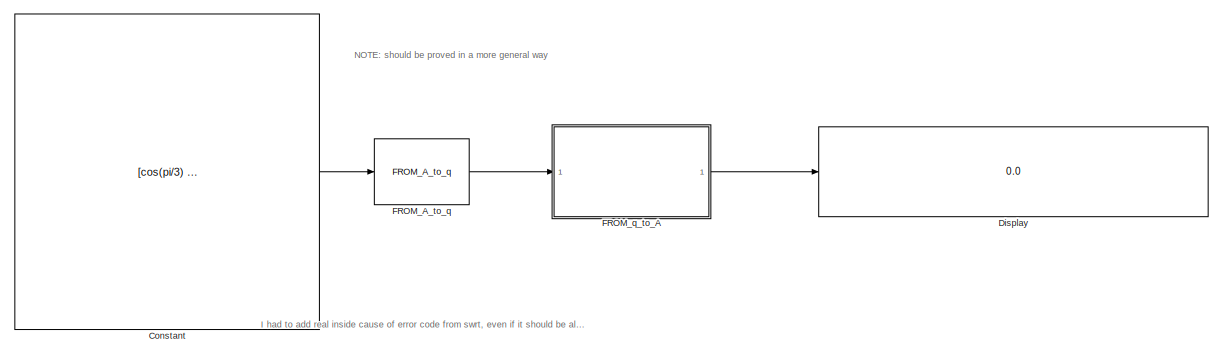
[diagram: root canvas - part 1/2, full width, top band]
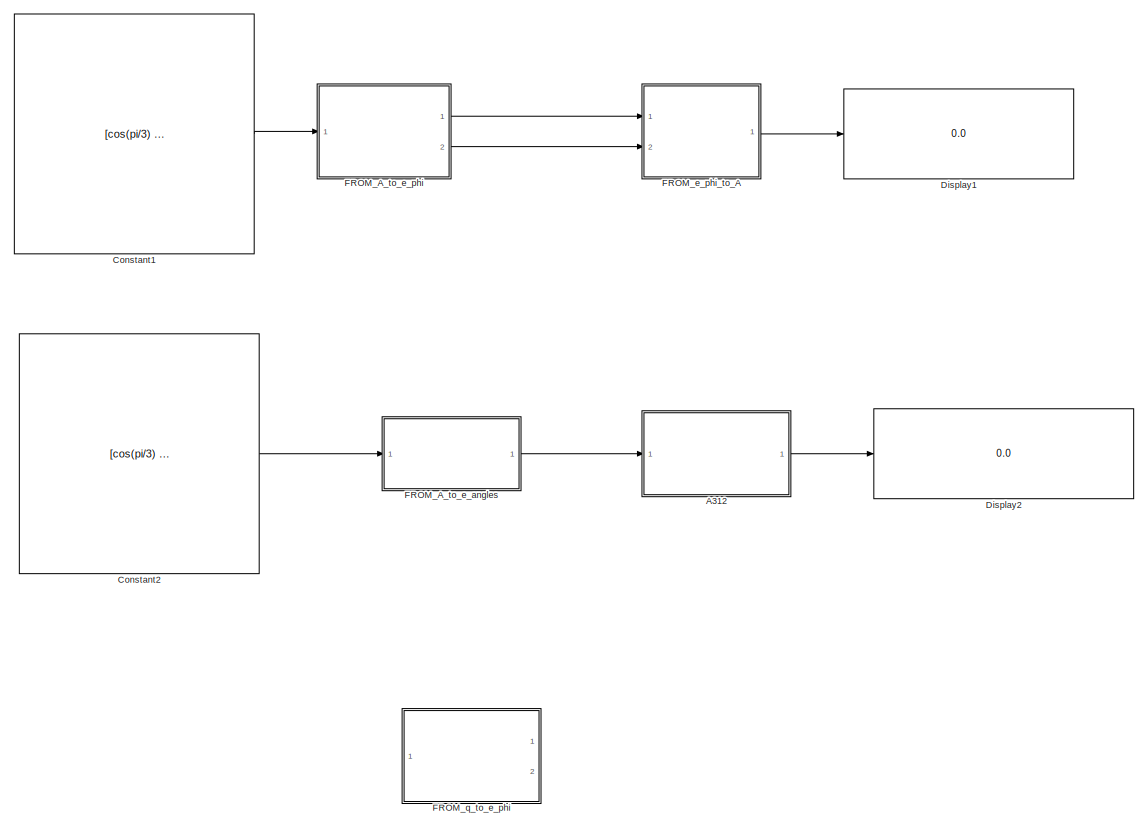
[diagram: root canvas - part 2/2, full width, bottom band]
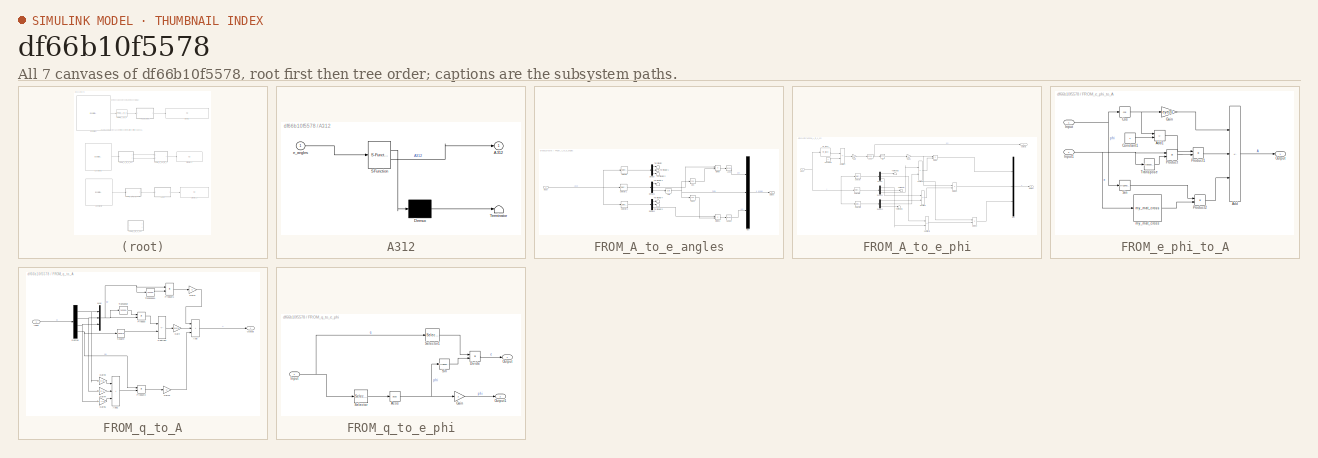
[diagram: thumbnail index - all 7 canvases of the model, root first then tree order]
MODEL slx_df66b10f5578
KIND model
CONFIG AbsTol = auto
CONFIG EnableMultiTasking = off
CONFIG FixedStep = auto
CONFIG MaxStep = auto
CONFIG MinStep = auto
CONFIG RelTol = 1e-3
CONFIG SampleTimeConstraint = Unconstrained
CONFIG SolverName = VariableStepAuto
CONFIG StartTime = 0.0
CONFIG StopTime = 10.0
BLOCK [SubSystem] A312
  ErrorFcn = Stateflow.Translate.translate
  PermitHierarchicalResolution = ExplicitOnly
  Ports = [1, 1]
  RequestExecContextInheritance = off
  SFBlockType = MATLAB Function
  TreatAsAtomicUnit = on
BLOCK [Demux] A312/ Demux 
  Outputs = 1
  Ports = [1, 1]
BLOCK [S-Function] A312/ SFunction 
  EnableBusSupport = on
  FunctionName = sf_sfun
  PortCounts = [1 2]
  Ports = [1, 2]
  SFcnIsStateOwnerBlock = off
  SFunctionDeploymentMode = off
  Tag = Stateflow S-Function 1
BLOCK [Terminator] A312/ Terminator 
BLOCK [Outport] A312/A312
BLOCK [Inport] A312/e_angles
BLOCK [Constant] Constant
  Value = [cos(pi/3) sin(pi/3) 0; -sin(pi/3) cos(pi/3) 0; 0 0 1]
BLOCK [Constant] Constant1
  Value = [cos(pi/3) sin(pi/3) 0; -sin(pi/3) cos(pi/3) 0; 0 0 1]
BLOCK [Constant] Constant2
  Value = [cos(pi/3) sin(pi/3) 0; -sin(pi/3) cos(pi/3) 0; 0 0 1]
BLOCK [Display] Display
  Decimation = 1
  Ports = [1]
BLOCK [Display] Display1
  Decimation = 1
  Ports = [1]
BLOCK [Display] Display2
  Decimation = 1
  Ports = [1]
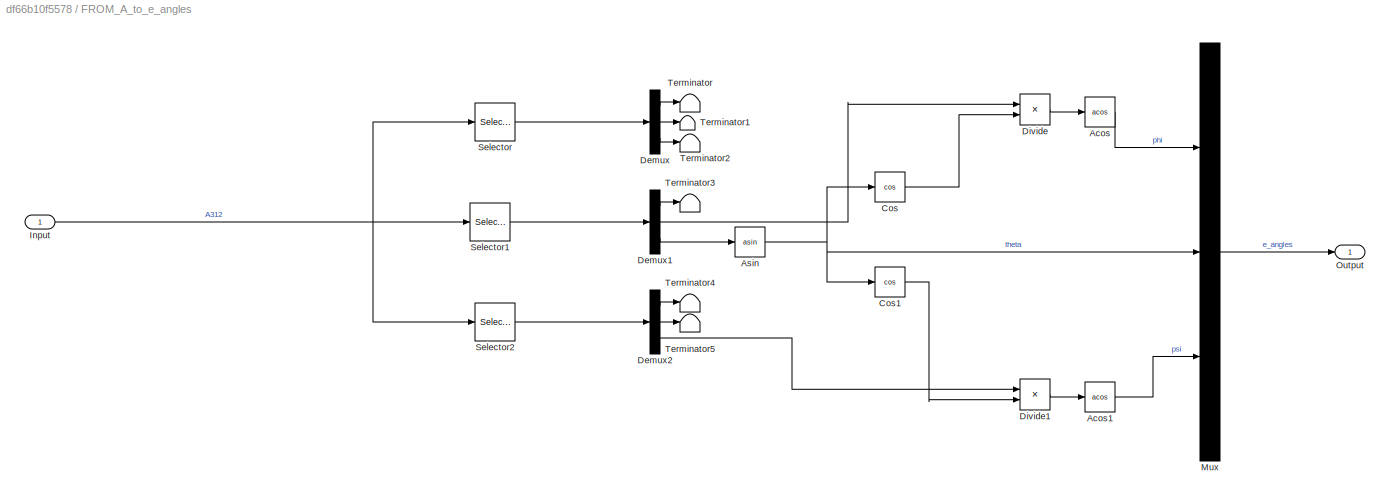
BLOCK [SubSystem] FROM_A_to_e_angles
  Ports = [1, 1]
  RequestExecContextInheritance = off
BLOCK [Trigonometry] FROM_A_to_e_angles/Acos
  Operator = acos
  Ports = [1, 1]
BLOCK [Trigonometry] FROM_A_to_e_angles/Acos1
  Operator = acos
  Ports = [1, 1]
BLOCK [Trigonometry] FROM_A_to_e_angles/Asin
  Operator = asin
  Ports = [1, 1]
BLOCK [Trigonometry] FROM_A_to_e_angles/Cos
  Operator = cos
  Ports = [1, 1]
BLOCK [Trigonometry] FROM_A_to_e_angles/Cos1
  Operator = cos
  Ports = [1, 1]
BLOCK [Demux] FROM_A_to_e_angles/Demux
  Outputs = 3
  Ports = [1, 3]
BLOCK [Demux] FROM_A_to_e_angles/Demux1
  Outputs = 3
  Ports = [1, 3]
BLOCK [Demux] FROM_A_to_e_angles/Demux2
  Outputs = 3
  Ports = [1, 3]
BLOCK [Product] FROM_A_to_e_angles/Divide
  Inputs = */
  Ports = [2, 1]
BLOCK [Product] FROM_A_to_e_angles/Divide1
  Inputs = */
  Ports = [2, 1]
BLOCK [Inport] FROM_A_to_e_angles/Input
  IconDisplay = Signal name
BLOCK [Mux] FROM_A_to_e_angles/Mux
  DisplayOption = bar
  Inputs = 3
  Ports = [3, 1]
BLOCK [Outport] FROM_A_to_e_angles/Output
  IconDisplay = Signal name
BLOCK [Selector] FROM_A_to_e_angles/Selector
  IndexOptions = Index vector (dialog),Select all
  Indices = 1,1
  InputPortWidth = 3
  NumberOfDimensions = 2
  OutputSizes = 1,1
  Ports = [1, 1]
BLOCK [Selector] FROM_A_to_e_angles/Selector1
  IndexOptions = Index vector (dialog),Select all
  Indices = 2,1
  InputPortWidth = 3
  NumberOfDimensions = 2
  OutputSizes = 1,1
  Ports = [1, 1]
BLOCK [Selector] FROM_A_to_e_angles/Selector2
  IndexOptions = Index vector (dialog),Select all
  Indices = 3,1
  InputPortWidth = 3
  NumberOfDimensions = 2
  OutputSizes = 1,1
  Ports = [1, 1]
BLOCK [Terminator] FROM_A_to_e_angles/Terminator
BLOCK [Terminator] FROM_A_to_e_angles/Terminator1
BLOCK [Terminator] FROM_A_to_e_angles/Terminator2
BLOCK [Terminator] FROM_A_to_e_angles/Terminator3
BLOCK [Terminator] FROM_A_to_e_angles/Terminator4
BLOCK [Terminator] FROM_A_to_e_angles/Terminator5
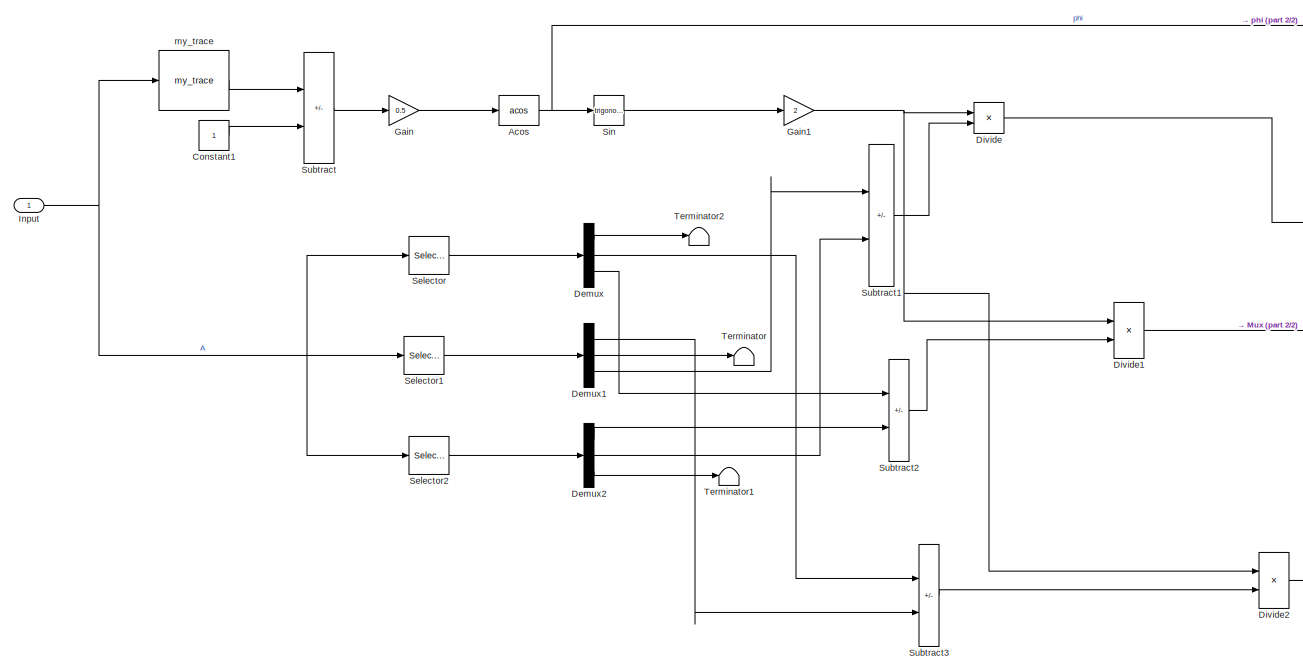
[diagram: FROM_A_to_e_phi - part 1/2, most of the canvas]
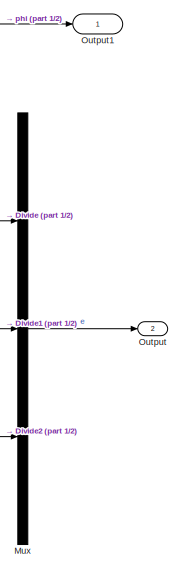
[diagram: FROM_A_to_e_phi - part 2/2, right side, full height]
BLOCK [SubSystem] FROM_A_to_e_phi
  Ports = [1, 2]
  RequestExecContextInheritance = off
BLOCK [Trigonometry] FROM_A_to_e_phi/Acos
  Operator = acos
  Ports = [1, 1]
BLOCK [Constant] FROM_A_to_e_phi/Constant1
BLOCK [Demux] FROM_A_to_e_phi/Demux
  Outputs = 3
  Ports = [1, 3]
BLOCK [Demux] FROM_A_to_e_phi/Demux1
  Outputs = 3
  Ports = [1, 3]
BLOCK [Demux] FROM_A_to_e_phi/Demux2
  Outputs = 3
  Ports = [1, 3]
BLOCK [Product] FROM_A_to_e_phi/Divide
  Inputs = /*
  Ports = [2, 1]
BLOCK [Product] FROM_A_to_e_phi/Divide1
  Inputs = /*
  Ports = [2, 1]
BLOCK [Product] FROM_A_to_e_phi/Divide2
  Inputs = /*
  Ports = [2, 1]
BLOCK [Gain] FROM_A_to_e_phi/Gain
  Gain = 0.5
BLOCK [Gain] FROM_A_to_e_phi/Gain1
  Gain = 2
BLOCK [Inport] FROM_A_to_e_phi/Input
  IconDisplay = Signal name
BLOCK [Mux] FROM_A_to_e_phi/Mux
  DisplayOption = bar
  Inputs = 3
  Ports = [3, 1]
BLOCK [Outport] FROM_A_to_e_phi/Output
  IconDisplay = Signal name
  Port = 2
BLOCK [Outport] FROM_A_to_e_phi/Output1
  IconDisplay = Signal name
BLOCK [Selector] FROM_A_to_e_phi/Selector
  IndexOptions = Index vector (dialog),Select all
  Indices = 1,1
  InputPortWidth = 3
  NumberOfDimensions = 2
  OutputSizes = 1,1
  Ports = [1, 1]
BLOCK [Selector] FROM_A_to_e_phi/Selector1
  IndexOptions = Index vector (dialog),Select all
  Indices = 2,1
  InputPortWidth = 3
  NumberOfDimensions = 2
  OutputSizes = 1,1
  Ports = [1, 1]
BLOCK [Selector] FROM_A_to_e_phi/Selector2
  IndexOptions = Index vector (dialog),Select all
  Indices = 3,1
  InputPortWidth = 3
  NumberOfDimensions = 2
  OutputSizes = 1,1
  Ports = [1, 1]
BLOCK [Trigonometry] FROM_A_to_e_phi/Sin
  Ports = [1, 1]
BLOCK [Sum] FROM_A_to_e_phi/Subtract
  IconShape = rectangular
  Inputs = +-
  Ports = [2, 1]
BLOCK [Sum] FROM_A_to_e_phi/Subtract1
  IconShape = rectangular
  Inputs = +-
  Ports = [2, 1]
BLOCK [Sum] FROM_A_to_e_phi/Subtract2
  IconShape = rectangular
  Inputs = -+
  Ports = [2, 1]
BLOCK [Sum] FROM_A_to_e_phi/Subtract3
  IconShape = rectangular
  Inputs = +-
  Ports = [2, 1]
BLOCK [Terminator] FROM_A_to_e_phi/Terminator
BLOCK [Terminator] FROM_A_to_e_phi/Terminator1
BLOCK [Terminator] FROM_A_to_e_phi/Terminator2
BLOCK [Reference] FROM_A_to_e_phi/my_trace  REF=my_math_ops/my_trace  (lib defined in slx_67cfba16120e)
  Ports = [1, 1]
  SourceBlock = my_math_ops/my_trace
  SourceProductName = My Mathematics Operations
  SourceType = SubSystem
BLOCK [Reference] FROM_A_to_q  REF=kinematic_transform/FROM_A_to_q  (lib defined in slx_aea597a4063a)
  Ports = [1, 1]
  SourceBlock = kinematic_transform/FROM_A_to_q
  SourceProductName = Kinematic Transformation
  SourceType = SubSystem
BLOCK [SubSystem] FROM_e_phi_to_A
  Ports = [2, 1]
  RequestExecContextInheritance = off
BLOCK [Sum] FROM_e_phi_to_A/Add
  IconShape = rectangular
  Inputs = ++-
  Ports = [3, 1]
BLOCK [Sum] FROM_e_phi_to_A/Add1
  IconShape = rectangular
  Inputs = -+
  Ports = [2, 1]
BLOCK [Constant] FROM_e_phi_to_A/Constant1
BLOCK [Trigonometry] FROM_e_phi_to_A/Cos
  Operator = cos
  Ports = [1, 1]
BLOCK [Gain] FROM_e_phi_to_A/Gain
  Gain = eye(3)
BLOCK [Inport] FROM_e_phi_to_A/Input
  IconDisplay = Signal name
BLOCK [Inport] FROM_e_phi_to_A/Input1
  IconDisplay = Signal name
  Port = 2
BLOCK [Outport] FROM_e_phi_to_A/Output
  IconDisplay = Signal name
BLOCK [Product] FROM_e_phi_to_A/Product
  Multiplication = Matrix(*)
  Ports = [2, 1]
BLOCK [Product] FROM_e_phi_to_A/Product1
  Ports = [2, 1]
BLOCK [Product] FROM_e_phi_to_A/Product2
  Ports = [2, 1]
BLOCK [Trigonometry] FROM_e_phi_to_A/Sin
  Ports = [1, 1]
BLOCK [Math] FROM_e_phi_to_A/Transpose
  Operator = transpose
  Ports = [1, 1]
BLOCK [Reference] FROM_e_phi_to_A/my_mat_cross  REF=my_math_ops/my_mat_cross  (lib defined in slx_67cfba16120e)
  Ports = [1, 1]
  SourceBlock = my_math_ops/my_mat_cross
  SourceProductName = My Mathematics Operations
  SourceType = SubSystem
BLOCK [SubSystem] FROM_q_to_A
  Ports = [1, 1]
  RequestExecContextInheritance = off
BLOCK [Sum] FROM_q_to_A/Add
  IconShape = rectangular
  Inputs = +++
  Ports = [3, 1]
BLOCK [Sum] FROM_q_to_A/Add1
  IconShape = rectangular
  Inputs = +++
  Ports = [3, 1]
BLOCK [Demux] FROM_q_to_A/Demux
  Ports = [1, 4]
BLOCK [Gain] FROM_q_to_A/Gain
  Gain = eye(3)
BLOCK [Gain] FROM_q_to_A/Gain1
  Gain = 2
BLOCK [Gain] FROM_q_to_A/Gain2
  Gain = -2
BLOCK [Gain] FROM_q_to_A/Gain3
  Gain = [0 0 0; 0 0 -1; 0 1 0]
BLOCK [Gain] FROM_q_to_A/Gain4
  Gain = [0 0 1; 0 0 0; -1 0 0]
BLOCK [Gain] FROM_q_to_A/Gain5
  Gain = [0 -1 0; 1 0 0; 0 0 0]
BLOCK [Inport] FROM_q_to_A/Input
  IconDisplay = Signal name
BLOCK [Mux] FROM_q_to_A/Mux
  DisplayOption = bar
  Inputs = 3
  Ports = [3, 1]
BLOCK [Outport] FROM_q_to_A/Output
  IconDisplay = Signal name
BLOCK [Product] FROM_q_to_A/Product
  Multiplication = Matrix(*)
  Ports = [2, 1]
BLOCK [Product] FROM_q_to_A/Product1
  Multiplication = Matrix(*)
  Ports = [2, 1]
BLOCK [Product] FROM_q_to_A/Product2
  Ports = [2, 1]
BLOCK [Math] FROM_q_to_A/Square
  Operator = square
  Ports = [1, 1]
BLOCK [Sum] FROM_q_to_A/Subtract
  IconShape = rectangular
  Inputs = -+
  Ports = [2, 1]
BLOCK [Math] FROM_q_to_A/Transpose
  Operator = transpose
  Ports = [1, 1]
BLOCK [Math] FROM_q_to_A/Transpose1
  Operator = transpose
  Ports = [1, 1]
BLOCK [SubSystem] FROM_q_to_e_phi
  Ports = [1, 2]
  RequestExecContextInheritance = off
BLOCK [Trigonometry] FROM_q_to_e_phi/Acos
  Operator = acos
  Ports = [1, 1]
BLOCK [Product] FROM_q_to_e_phi/Divide
  Inputs = */
  Ports = [2, 1]
BLOCK [Gain] FROM_q_to_e_phi/Gain
  Gain = 2
BLOCK [Inport] FROM_q_to_e_phi/Input
  IconDisplay = Signal name
BLOCK [Outport] FROM_q_to_e_phi/Output
  IconDisplay = Signal name
BLOCK [Outport] FROM_q_to_e_phi/Output1
  IconDisplay = Signal name
  Port = 2
BLOCK [Selector] FROM_q_to_e_phi/Selector
  IndexOptions = Index vector (dialog)
  Indices = 4
  InputPortWidth = 4
  OutputSizes = 1
  Ports = [1, 1]
BLOCK [Selector] FROM_q_to_e_phi/Selector1
  IndexOptions = Index vector (dialog)
  Indices = [1 2 3]
  InputPortWidth = 4
  OutputSizes = 1
  Ports = [1, 1]
BLOCK [Trigonometry] FROM_q_to_e_phi/Sin
  Ports = [1, 1]
ANNOTATION (root): I had to add real inside cause of error code from swrt, even if it should be always positive argument
ANNOTATION (root): NOTE: should be proved in a more general way
LINE A312:1 -> Display2:1
LINE Constant1:1 -> FROM_A_to_e_phi:1
LINE Constant2:1 -> FROM_A_to_e_angles:1
LINE Constant:1 -> FROM_A_to_q:1
LINE FROM_A_to_e_angles/Acos1:1 -> FROM_A_to_e_angles/Mux:3
LINE FROM_A_to_e_angles/Acos:1 -> FROM_A_to_e_angles/Mux:1
NET FROM_A_to_e_angles/Asin:1 -> FROM_A_to_e_angles/Cos1:1, FROM_A_to_e_angles/Cos:1, FROM_A_to_e_angles/Mux:2
LINE FROM_A_to_e_angles/Cos1:1 -> FROM_A_to_e_angles/Divide1:2
LINE FROM_A_to_e_angles/Cos:1 -> FROM_A_to_e_angles/Divide:2
LINE FROM_A_to_e_angles/Demux1:1 -> FROM_A_to_e_angles/Terminator3:1
LINE FROM_A_to_e_angles/Demux1:2 -> FROM_A_to_e_angles/Divide:1
LINE FROM_A_to_e_angles/Demux1:3 -> FROM_A_to_e_angles/Asin:1
LINE FROM_A_to_e_angles/Demux2:1 -> FROM_A_to_e_angles/Terminator4:1
LINE FROM_A_to_e_angles/Demux2:2 -> FROM_A_to_e_angles/Terminator5:1
LINE FROM_A_to_e_angles/Demux2:3 -> FROM_A_to_e_angles/Divide1:1
LINE FROM_A_to_e_angles/Demux:1 -> FROM_A_to_e_angles/Terminator:1
LINE FROM_A_to_e_angles/Demux:2 -> FROM_A_to_e_angles/Terminator1:1
LINE FROM_A_to_e_angles/Demux:3 -> FROM_A_to_e_angles/Terminator2:1
LINE FROM_A_to_e_angles/Divide1:1 -> FROM_A_to_e_angles/Acos1:1
LINE FROM_A_to_e_angles/Divide:1 -> FROM_A_to_e_angles/Acos:1
NET FROM_A_to_e_angles/Input:1 -> FROM_A_to_e_angles/Selector1:1, FROM_A_to_e_angles/Selector2:1, FROM_A_to_e_angles/Selector:1
LINE FROM_A_to_e_angles/Mux:1 -> FROM_A_to_e_angles/Output:1
LINE FROM_A_to_e_angles/Selector1:1 -> FROM_A_to_e_angles/Demux1:1
LINE FROM_A_to_e_angles/Selector2:1 -> FROM_A_to_e_angles/Demux2:1
LINE FROM_A_to_e_angles/Selector:1 -> FROM_A_to_e_angles/Demux:1
LINE FROM_A_to_e_angles:1 -> A312:1
NET FROM_A_to_e_phi/Acos:1 -> FROM_A_to_e_phi/Output1:1, FROM_A_to_e_phi/Sin:1
LINE FROM_A_to_e_phi/Constant1:1 -> FROM_A_to_e_phi/Subtract:2
LINE FROM_A_to_e_phi/Demux1:1 -> FROM_A_to_e_phi/Subtract3:2
LINE FROM_A_to_e_phi/Demux1:2 -> FROM_A_to_e_phi/Terminator:1
LINE FROM_A_to_e_phi/Demux1:3 -> FROM_A_to_e_phi/Subtract1:1
LINE FROM_A_to_e_phi/Demux2:1 -> FROM_A_to_e_phi/Subtract2:2
LINE FROM_A_to_e_phi/Demux2:2 -> FROM_A_to_e_phi/Subtract1:2
LINE FROM_A_to_e_phi/Demux2:3 -> FROM_A_to_e_phi/Terminator1:1
LINE FROM_A_to_e_phi/Demux:1 -> FROM_A_to_e_phi/Terminator2:1
LINE FROM_A_to_e_phi/Demux:2 -> FROM_A_to_e_phi/Subtract3:1
LINE FROM_A_to_e_phi/Demux:3 -> FROM_A_to_e_phi/Subtract2:1
LINE FROM_A_to_e_phi/Divide1:1 -> FROM_A_to_e_phi/Mux:2
LINE FROM_A_to_e_phi/Divide2:1 -> FROM_A_to_e_phi/Mux:3
LINE FROM_A_to_e_phi/Divide:1 -> FROM_A_to_e_phi/Mux:1
NET FROM_A_to_e_phi/Gain1:1 -> FROM_A_to_e_phi/Divide1:1, FROM_A_to_e_phi/Divide2:1, FROM_A_to_e_phi/Divide:1
LINE FROM_A_to_e_phi/Gain:1 -> FROM_A_to_e_phi/Acos:1
NET FROM_A_to_e_phi/Input:1 -> FROM_A_to_e_phi/Selector1:1, FROM_A_to_e_phi/Selector2:1, FROM_A_to_e_phi/Selector:1, FROM_A_to_e_phi/my_trace:1
LINE FROM_A_to_e_phi/Mux:1 -> FROM_A_to_e_phi/Output:1
LINE FROM_A_to_e_phi/Selector1:1 -> FROM_A_to_e_phi/Demux1:1
LINE FROM_A_to_e_phi/Selector2:1 -> FROM_A_to_e_phi/Demux2:1
LINE FROM_A_to_e_phi/Selector:1 -> FROM_A_to_e_phi/Demux:1
LINE FROM_A_to_e_phi/Sin:1 -> FROM_A_to_e_phi/Gain1:1
LINE FROM_A_to_e_phi/Subtract1:1 -> FROM_A_to_e_phi/Divide:2
LINE FROM_A_to_e_phi/Subtract2:1 -> FROM_A_to_e_phi/Divide1:2
LINE FROM_A_to_e_phi/Subtract3:1 -> FROM_A_to_e_phi/Divide2:2
LINE FROM_A_to_e_phi/Subtract:1 -> FROM_A_to_e_phi/Gain:1
LINE FROM_A_to_e_phi/my_trace:1 -> FROM_A_to_e_phi/Subtract:1
LINE FROM_A_to_e_phi:1 -> FROM_e_phi_to_A:1
LINE FROM_A_to_e_phi:2 -> FROM_e_phi_to_A:2
LINE FROM_A_to_q:1 -> FROM_q_to_A:1
LINE FROM_e_phi_to_A/Add1:1 -> FROM_e_phi_to_A/Product1:1
LINE FROM_e_phi_to_A/Add:1 -> FROM_e_phi_to_A/Output:1
LINE FROM_e_phi_to_A/Constant1:1 -> FROM_e_phi_to_A/Add1:2
NET FROM_e_phi_to_A/Cos:1 -> FROM_e_phi_to_A/Add1:1, FROM_e_phi_to_A/Gain:1
LINE FROM_e_phi_to_A/Gain:1 -> FROM_e_phi_to_A/Add:1
NET FROM_e_phi_to_A/Input1:1 -> FROM_e_phi_to_A/Product:1, FROM_e_phi_to_A/Transpose:1, FROM_e_phi_to_A/my_mat_cross:1
NET FROM_e_phi_to_A/Input:1 -> FROM_e_phi_to_A/Cos:1, FROM_e_phi_to_A/Sin:1
LINE FROM_e_phi_to_A/Product1:1 -> FROM_e_phi_to_A/Add:2
LINE FROM_e_phi_to_A/Product2:1 -> FROM_e_phi_to_A/Add:3
LINE FROM_e_phi_to_A/Product:1 -> FROM_e_phi_to_A/Product1:2
LINE FROM_e_phi_to_A/Sin:1 -> FROM_e_phi_to_A/Product2:1
LINE FROM_e_phi_to_A/Transpose:1 -> FROM_e_phi_to_A/Product:2
LINE FROM_e_phi_to_A/my_mat_cross:1 -> FROM_e_phi_to_A/Product2:2
LINE FROM_e_phi_to_A:1 -> Display1:1
LINE FROM_q_to_A/Add1:1 -> FROM_q_to_A/Product2:2
LINE FROM_q_to_A/Add:1 -> FROM_q_to_A/Output:1
NET FROM_q_to_A/Demux:1 -> FROM_q_to_A/Gain3:1, FROM_q_to_A/Mux:1
NET FROM_q_to_A/Demux:2 -> FROM_q_to_A/Gain4:1, FROM_q_to_A/Mux:2
NET FROM_q_to_A/Demux:3 -> FROM_q_to_A/Gain5:1, FROM_q_to_A/Mux:3
NET FROM_q_to_A/Demux:4 -> FROM_q_to_A/Product2:1, FROM_q_to_A/Square:1
LINE FROM_q_to_A/Gain1:1 -> FROM_q_to_A/Add:1
LINE FROM_q_to_A/Gain2:1 -> FROM_q_to_A/Add:3
LINE FROM_q_to_A/Gain3:1 -> FROM_q_to_A/Add1:1
LINE FROM_q_to_A/Gain4:1 -> FROM_q_to_A/Add1:2
LINE FROM_q_to_A/Gain5:1 -> FROM_q_to_A/Add1:3
LINE FROM_q_to_A/Gain:1 -> FROM_q_to_A/Add:2
LINE FROM_q_to_A/Input:1 -> FROM_q_to_A/Demux:1
NET FROM_q_to_A/Mux:1 -> FROM_q_to_A/Product1:1, FROM_q_to_A/Product:2, FROM_q_to_A/Transpose1:1, FROM_q_to_A/Transpose:1
LINE FROM_q_to_A/Product1:1 -> FROM_q_to_A/Gain1:1
LINE FROM_q_to_A/Product2:1 -> FROM_q_to_A/Gain2:1
LINE FROM_q_to_A/Product:1 -> FROM_q_to_A/Subtract:1
LINE FROM_q_to_A/Square:1 -> FROM_q_to_A/Subtract:2
LINE FROM_q_to_A/Subtract:1 -> FROM_q_to_A/Gain:1
LINE FROM_q_to_A/Transpose1:1 -> FROM_q_to_A/Product1:2
LINE FROM_q_to_A/Transpose:1 -> FROM_q_to_A/Product:1
LINE FROM_q_to_A:1 -> Display:1
NET FROM_q_to_e_phi/Acos:1 -> FROM_q_to_e_phi/Gain:1, FROM_q_to_e_phi/Sin:1
LINE FROM_q_to_e_phi/Divide:1 -> FROM_q_to_e_phi/Output:1
LINE FROM_q_to_e_phi/Gain:1 -> FROM_q_to_e_phi/Output1:1
NET FROM_q_to_e_phi/Input:1 -> FROM_q_to_e_phi/Selector1:1, FROM_q_to_e_phi/Selector:1
LINE FROM_q_to_e_phi/Selector1:1 -> FROM_q_to_e_phi/Divide:1
LINE FROM_q_to_e_phi/Selector:1 -> FROM_q_to_e_phi/Acos:1
LINE FROM_q_to_e_phi/Sin:1 -> FROM_q_to_e_phi/Divide:2
note: NET lines group one-source signal fan-out (src -> all destinations, sorted); 1:1 wires keep LINE
CHART A312 states=1 transitions=1
  STATE_LABEL 'eML_blk_kernel()'
  STATE_LABEL 'SCRIPT:\nfunction A312 = FROM_e_angles_to_A(e_angles)\nphi = e_angles(1);\ntheta = e_angles(2);\npsi = e_angles(3);\nA312 = [cos(psi)*cos(phi)-sin(psi)*sin(phi)*sin(theta), cos(psi)*sin(phi) + sin(psi)*cos(phi)*sin(theta), -sin(psi)*cos(theta);\n     -sin(phi)*cos(theta), cos(phi)*cos(theta), sin(theta);\n     sin(psi)*cos(phi)+cos(psi)*sin(phi)*sin(theta), sin(psi)*sin(phi)-cos(psi)*cos(phi)*sin(theta),...<+27ch>'
CHART  states=0 transitions=0
